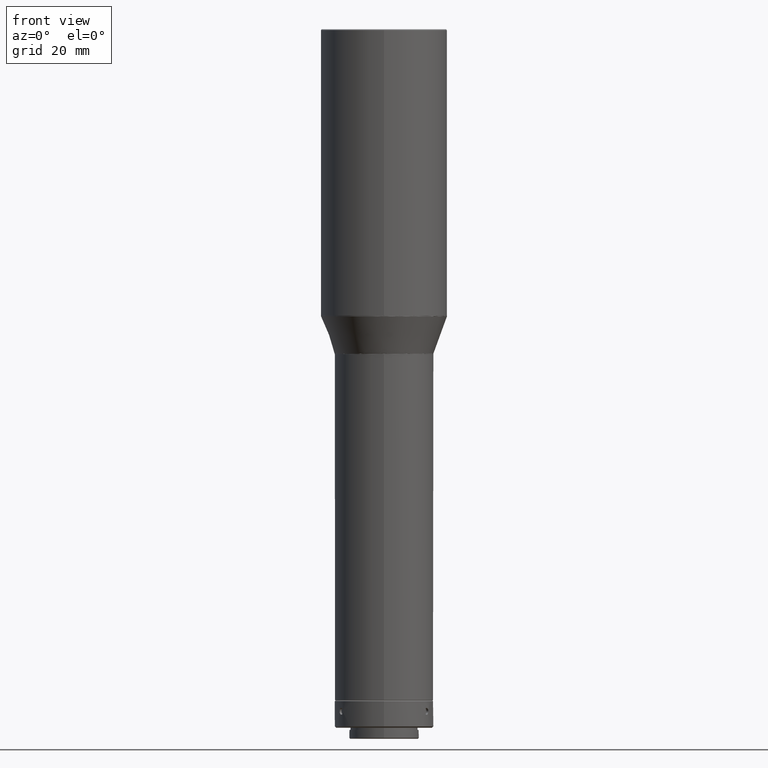
[diagram: clean part render]
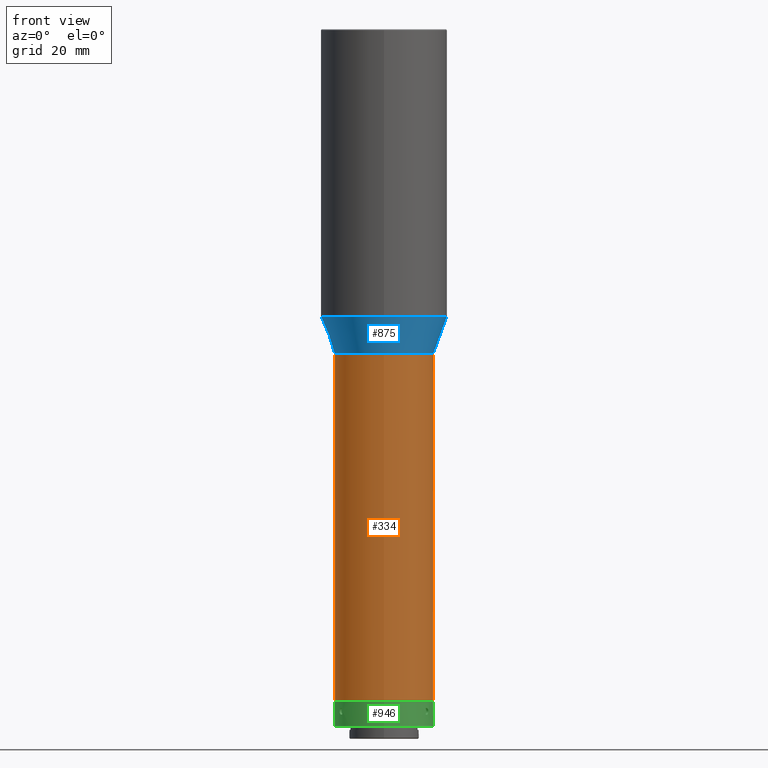
[diagram: same view with three faces highlighted in distinct colors, each labeled with its STEP entity id]
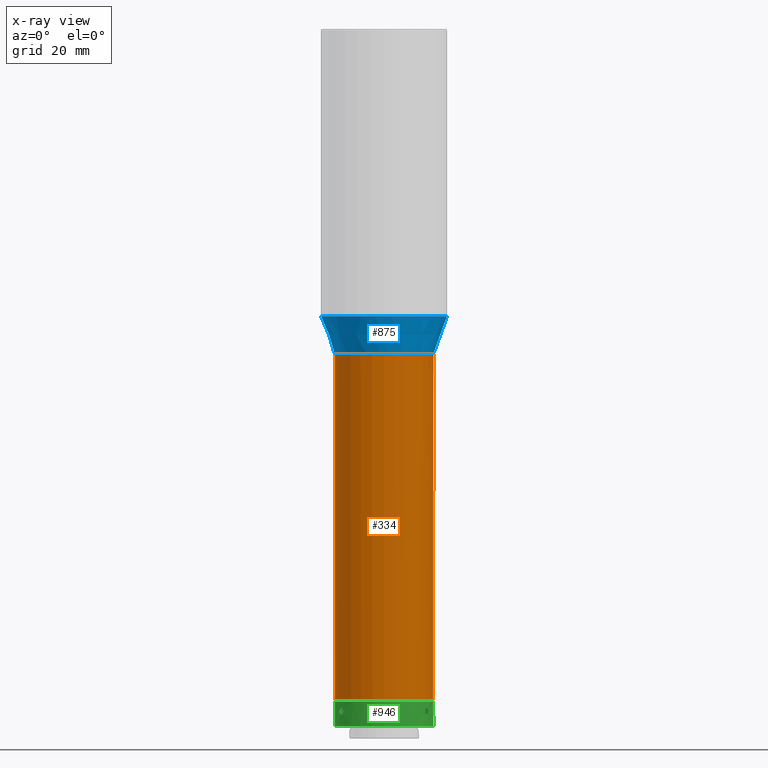
[diagram: x-ray of the same camera — body ghosted, the three highlighted faces saturated]
A machine part, front view with three faces highlighted in distinct colors.
The next image is the same camera in x-ray (body ghosted, the three faces saturated) — at least one of them is partly hidden behind the body in this view.
Their STEP definitions:

[orange] entity #334 — the highlighted cylindrical surface (bore or boss wall) has radius 18 mm, axis along (0, 0, 1).
#28 = DIRECTION ( 'NONE',  ( 7.703719777548943412E-32, 2.775557561562909840E-17, 1.000000000000000000 ) ) ;
#34 = CARTESIAN_POINT ( 'NONE',  ( 1.363162296991161438E-29, -1.267639217236709753E-15, -512.5814980779815642 ) ) ;
#36 = FACE_OUTER_BOUND ( 'NONE', #437, .T. ) ;
#46 = VERTEX_POINT ( 'NONE', #462 ) ;
#144 = CIRCLE ( 'NONE', #457, 17.99999999999999645 ) ;
#172 = DIRECTION ( 'NONE',  ( 0.000000000000000000, -1.000000000000000000, 0.000000000000000000 ) ) ;
#207 = AXIS2_PLACEMENT_3D ( 'NONE', #900, #493, #172 ) ;
#233 = CYLINDRICAL_SURFACE ( 'NONE', #414, 17.99999999999999645 ) ;
#292 = ORIENTED_EDGE ( 'NONE', *, *, #1121, .T. ) ;
#330 = CARTESIAN_POINT ( 'NONE',  ( 17.99999999999999645, -1.267639217236709753E-15, -512.5814980779815642 ) ) ;
#334 = ADVANCED_FACE ( 'NONE', ( #36, #870 ), #233, .T. ) ;
#414 = AXIS2_PLACEMENT_3D ( 'NONE', #633, #28, #1052 ) ;
#437 = EDGE_LOOP ( 'NONE', ( #1341 ) ) ;
#441 = DIRECTION ( 'NONE',  ( -7.703719777548943412E-32, -2.775557561562909840E-17, -1.000000000000000000 ) ) ;
#457 = AXIS2_PLACEMENT_3D ( 'NONE', #34, #441, #1280 ) ;
#462 = CARTESIAN_POINT ( 'NONE',  ( 3.908273988849363898E-30, -18.00000000000000000, -638.7977839999999787 ) ) ;
#493 = DIRECTION ( 'NONE',  ( 7.703719777548943412E-32, 2.775557561562909840E-17, 1.000000000000000000 ) ) ;
#628 = CIRCLE ( 'NONE', #207, 17.99999999999999645 ) ;
#633 = CARTESIAN_POINT ( 'NONE',  ( 1.652485272392767333E-29, -2.252433418699909083E-16, -475.0252286709889518 ) ) ;
#870 = FACE_OUTER_BOUND ( 'NONE', #909, .T. ) ;
#900 = CARTESIAN_POINT ( 'NONE',  ( 3.908273988849363898E-30, -4.770844885069156223E-15, -638.7977839999999787 ) ) ;
#909 = EDGE_LOOP ( 'NONE', ( #292 ) ) ;
#912 = VERTEX_POINT ( 'NONE', #330 ) ;
#1035 = EDGE_CURVE ( 'NONE', #46, #46, #628, .T. ) ;
#1052 = DIRECTION ( 'NONE',  ( 0.000000000000000000, -1.000000000000000000, 0.000000000000000000 ) ) ;
#1121 = EDGE_CURVE ( 'NONE', #912, #912, #144, .T. ) ;
#1280 = DIRECTION ( 'NONE',  ( 1.000000000000000000, 0.000000000000000000, 0.000000000000000000 ) ) ;
#1341 = ORIENTED_EDGE ( 'NONE', *, *, #1035, .T. ) ;

[blue] entity #875 — the highlighted conical surface has half-angle 20 deg.
#44 = FACE_BOUND ( 'NONE', #915, .T. ) ;
#96 = ORIENTED_EDGE ( 'NONE', *, *, #287, .T. ) ;
#158 = DIRECTION ( 'NONE',  ( 1.000000000000000000, 2.132776484860738091E-32, 0.000000000000000000 ) ) ;
#243 = FACE_OUTER_BOUND ( 'NONE', #620, .T. ) ;
#260 = DIRECTION ( 'NONE',  ( 7.703719777548943412E-32, 2.775557561562909840E-17, 1.000000000000000000 ) ) ;
#287 = EDGE_CURVE ( 'NONE', #1316, #1316, #299, .T. ) ;
#299 = CIRCLE ( 'NONE', #591, 18.06030737921410889 ) ;
#361 = DIRECTION ( 'NONE',  ( 7.703719777548943412E-32, 2.775557561562909840E-17, 1.000000000000000000 ) ) ;
#374 = VERTEX_POINT ( 'NONE', #1107 ) ;
#382 = CARTESIAN_POINT ( 'NONE',  ( 18.06030737921410889, -1.258146251286564321E-15, -512.2394779346559517 ) ) ;
#384 = AXIS2_PLACEMENT_3D ( 'NONE', #1181, #440, #1087 ) ;
#440 = DIRECTION ( 'NONE',  ( 0.000000000000000000, -0.000000000000000000, 1.000000000000000000 ) ) ;
#448 = CARTESIAN_POINT ( 'NONE',  ( 1.365797124333619609E-29, -1.258146251286564716E-15, -512.2394779346559517 ) ) ;
#477 = EDGE_CURVE ( 'NONE', #374, #374, #1138, .T. ) ;
#494 = CONICAL_SURFACE ( 'NONE', #384, 22.93969262078595150, 0.3490658503988665062 ) ;
#541 = AXIS2_PLACEMENT_3D ( 'NONE', #1088, #361, #780 ) ;
#591 = AXIS2_PLACEMENT_3D ( 'NONE', #448, #260, #158 ) ;
#620 = EDGE_LOOP ( 'NONE', ( #1332 ) ) ;
#780 = DIRECTION ( 'NONE',  ( -1.000000000000000000, 0.000000000000000000, 0.000000000000000000 ) ) ;
#875 = ADVANCED_FACE ( 'NONE', ( #44, #243 ), #494, .T. ) ;
#915 = EDGE_LOOP ( 'NONE', ( #96 ) ) ;
#1087 = DIRECTION ( 'NONE',  ( 1.000000000000000000, 0.000000000000000000, 0.000000000000000000 ) ) ;
#1088 = CARTESIAN_POINT ( 'NONE',  ( 1.469073197619009819E-29, -8.860549831550666063E-16, -498.8334771626172142 ) ) ;
#1107 = CARTESIAN_POINT ( 'NONE',  ( -22.93969262078591953, -8.860549831550666063E-16, -498.8334771626172142 ) ) ;
#1138 = CIRCLE ( 'NONE', #541, 22.93969262078591953 ) ;
#1181 = CARTESIAN_POINT ( 'NONE',  ( 0.000000000000000000, -8.860549831550607884E-16, -498.8334771626172142 ) ) ;
#1316 = VERTEX_POINT ( 'NONE', #382 ) ;
#1332 = ORIENTED_EDGE ( 'NONE', *, *, #477, .F. ) ;

[green] entity #946 — the highlighted cylindrical surface (bore or boss wall) has radius 18 mm, axis along (0, -0, 1).
#22 = CARTESIAN_POINT ( 'NONE',  ( 2.490672292747463815E-14, -17.99999999999996803, -648.3977839999998878 ) ) ;
#23 = CARTESIAN_POINT ( 'NONE',  ( -14.94412316329294654, -10.03379964370059696, -643.2250848894949513 ) ) ;
#26 = CARTESIAN_POINT ( 'NONE',  ( -0.1622122894999863674, 18.00000780388933208, -641.6476716239671987 ) ) ;
#30 = CARTESIAN_POINT ( 'NONE',  ( 2.490672292747463815E-14, 3.543491112570156433E-14, -638.8977840000000015 ) ) ;
#53 = CARTESIAN_POINT ( 'NONE',  ( 0.6291994582050761675, 17.98962860717573875, -641.8054881845228010 ) ) ;
#54 = CARTESIAN_POINT ( 'NONE',  ( 15.19139366244531253, -9.655838794076574416, -643.8988806175245827 ) ) ;
#61 = CARTESIAN_POINT ( 'NONE',  ( -16.17582393315547407, -7.895740629197067761, -643.0629832392655771 ) ) ;
#66 = CARTESIAN_POINT ( 'NONE',  ( 15.01397497146088966, -9.928973643487784884, -643.5282099346065934 ) ) ;
#71 = CARTESIAN_POINT ( 'NONE',  ( -15.42218430790375194, -9.283256999105425677, -644.1147993772534619 ) ) ;
#74 = CARTESIAN_POINT ( 'NONE',  ( 1.250000000000015987, 17.95654476785556852, -642.8977840000000015 ) ) ;
#75 = CARTESIAN_POINT ( 'NONE',  ( 15.01384693159026540, -9.929166768100127882, -642.2677776262729594 ) ) ;
#79 = CARTESIAN_POINT ( 'NONE',  ( -15.26487600238788644, -9.539716451242918893, -643.9900801720305026 ) ) ;
#90 = CARTESIAN_POINT ( 'NONE',  ( 16.10573125108191306, -8.037996199706887168, -642.2673594048875430 ) ) ;
#116 = VERTEX_POINT ( 'NONE', #1258 ) ;
#128 = VERTEX_POINT ( 'NONE', #22 ) ;
#129 = CARTESIAN_POINT ( 'NONE',  ( -14.92582376334303262, -10.06080439058543696, -642.7325872969528291 ) ) ;
#132 = CARTESIAN_POINT ( 'NONE',  ( -0.9991393837938582489, 17.97261919133776686, -643.6664161668028328 ) ) ;
#147 = AXIS2_PLACEMENT_3D ( 'NONE', #30, #432, #1270 ) ;
#152 = CARTESIAN_POINT ( 'NONE',  ( 14.92582393315544209, -10.06080413865832490, -643.0629832392655771 ) ) ;
#153 = CARTESIAN_POINT ( 'NONE',  ( 1.217464335294337507, 17.95889008224768091, -642.5704849706280584 ) ) ;
#157 = CARTESIAN_POINT ( 'NONE',  ( -15.67042028344146232, -8.858020202463171344, -641.6478969727667163 ) ) ;
#169 = CARTESIAN_POINT ( 'NONE',  ( 16.10583377797243898, -8.037790164337387466, -643.5277916652776184 ) ) ;
#175 = CARTESIAN_POINT ( 'NONE',  ( 16.16158696957454666, -7.925090474844752819, -643.2250848894949513 ) ) ;
#177 = B_SPLINE_CURVE_WITH_KNOTS ( 'NONE', 3,
 ( #857, #1277, #253, #1178, #447, #865, #652, #259, #157, #557, #977, #874, #1293, #1195, #358, #661, #129, #950, #23, #842, #332, #1103, #79, #71, #1217, #667, #794, #891, #776, #286, #1205, #991, #61, #1223 ),
 .UNSPECIFIED., .T., .F.,
 ( 4, 2, 2, 2, 2, 2, 2, 2, 2, 2, 2, 2, 2, 2, 2, 2, 4 ),
 ( 0.000000000000000000, 0.0004885519476059286669, 0.0009771038952118573338, 0.001465655842817786001, 0.001954207790423714668, 0.002442759738029643551, 0.002931311685635572001, 0.003419863633241500452, 0.003908415580847429335, 0.004396967528453358219, 0.004885519476059287103, 0.005374071423665215119, 0.005862623371271144003, 0.006351175318877072887, 0.006839727266483000903, 0.007328279214088929787, 0.007816831161694858671 ),
 .UNSPECIFIED. ) ;
#180 = CARTESIAN_POINT ( 'NONE',  ( 1.091755923036157760, 17.96697055881279681, -643.5282099346064797 ) ) ;
#181 = CARTESIAN_POINT ( 'NONE',  ( 15.06517464280622143, -9.851590384043079851, -642.1291528769148726 ) ) ;
#187 = VERTEX_POINT ( 'NONE', #972 ) ;
#188 = CARTESIAN_POINT ( 'NONE',  ( 16.17582379988438390, -7.895740902226628499, -643.0629852896939838 ) ) ;
#244 = CARTESIAN_POINT ( 'NONE',  ( 1.091987193791671862, 17.96695623533832276, -642.2677776262729594 ) ) ;
#252 = AXIS2_PLACEMENT_3D ( 'NONE', #450, #956, #360 ) ;
#253 = CARTESIAN_POINT ( 'NONE',  ( -16.16158720264610693, -7.925089998557169224, -642.5704849706281721 ) ) ;
#259 = CARTESIAN_POINT ( 'NONE',  ( -15.75062872817971638, -8.714374564439935966, -641.6807686990359798 ) ) ;
#265 = CARTESIAN_POINT ( 'NONE',  ( -1.249999696914052993, 17.95654478895415451, -643.0629852896943248 ) ) ;
#266 = CARTESIAN_POINT ( 'NONE',  ( 14.92582393315540301, -10.06080413865837286, -642.7325847607347669 ) ) ;
#268 = ORIENTED_EDGE ( 'NONE', *, *, #454, .T. ) ;
#272 = CARTESIAN_POINT ( 'NONE',  ( 1.250000000000015987, 17.95654476785557208, -643.0629832392653498 ) ) ;
#286 = CARTESIAN_POINT ( 'NONE',  ( -16.06471677035727907, -8.120254879791511726, -643.6657041707625240 ) ) ;
#289 = CARTESIAN_POINT ( 'NONE',  ( 16.16155327807075892, -7.925159788840796082, -642.5701607959091461 ) ) ;
#311 = ORIENTED_EDGE ( 'NONE', *, *, #1179, .T. ) ;
#332 = CARTESIAN_POINT ( 'NONE',  ( -15.06517510034522545, -9.851589683955872090, -643.6664161668021507 ) ) ;
#335 = CARTESIAN_POINT ( 'NONE',  ( 0.9991402188564911802, 17.97261914514094272, -642.1291528769146453 ) ) ;
#341 = CARTESIAN_POINT ( 'NONE',  ( -1.217386932848413705, 17.95889559784537681, -642.5701607959091461 ) ) ;
#358 = CARTESIAN_POINT ( 'NONE',  ( -15.01397453000993387, -9.928974310108285906, -642.2673594048875430 ) ) ;
#360 = DIRECTION ( 'NONE',  ( -1.000000000000000000, -3.423875456688420705E-31, 0.000000000000000000 ) ) ;
#362 = CARTESIAN_POINT ( 'NONE',  ( -1.091756721072152159, 17.96697050981532939, -642.2673594048877703 ) ) ;
#363 = CARTESIAN_POINT ( 'NONE',  ( 15.26509761156022371, -9.539377401184744087, -643.9904600156606875 ) ) ;
#368 = FACE_BOUND ( 'NONE', #624, .T. ) ;
#376 = CARTESIAN_POINT ( 'NONE',  ( 1.217386422865442741, 17.95889563292110580, -643.2254090172556289 ) ) ;
#377 = CARTESIAN_POINT ( 'NONE',  ( 15.89407479287074310, -8.449912178065801527, -643.9900801720305026 ) ) ;
#386 = CARTESIAN_POINT ( 'NONE',  ( -17.99999999999996803, 3.544149317719566040E-14, -639.1977839999999560 ) ) ;
#392 = CARTESIAN_POINT ( 'NONE',  ( 15.50648066428972705, -9.141971952207558871, -641.6478969727667163 ) ) ;
#432 = DIRECTION ( 'NONE',  ( 3.081487911019577365E-32, -2.194017164698387090E-17, 1.000000000000000000 ) ) ;
#433 = CARTESIAN_POINT ( 'NONE',  ( 1.250000000000015987, 17.95654476785556142, -642.7325847607345395 ) ) ;
#447 = CARTESIAN_POINT ( 'NONE',  ( -16.06431486166295386, -8.121028761097660364, -642.1291528769148726 ) ) ;
#450 = CARTESIAN_POINT ( 'NONE',  ( 2.490672292747463815E-14, 3.544149317719566671E-14, -639.1977839999999560 ) ) ;
#454 = EDGE_CURVE ( 'NONE', #805, #805, #1206, .T. ) ;
#479 = CARTESIAN_POINT ( 'NONE',  ( 15.42218411498790687, -9.283257321960542541, -641.6807686990359798 ) ) ;
#499 = CARTESIAN_POINT ( 'NONE',  ( 15.66957017123615792, -8.859523938431834722, -641.6476716239671987 ) ) ;
#535 = CARTESIAN_POINT ( 'NONE',  ( -0.1639394304985891671, 17.99999215467995484, -644.1476710273640265 ) ) ;
#545 = DIRECTION ( 'NONE',  ( 0.000000000000000000, -1.000000000000000000, 0.000000000000000000 ) ) ;
#552 = CARTESIAN_POINT ( 'NONE',  ( 0.1639396191514665979, 17.99999215467090963, -641.6478969727662616 ) ) ;
#557 = CARTESIAN_POINT ( 'NONE',  ( -15.50735788173644458, -9.140483865457325052, -641.6476716239671987 ) ) ;
#559 = CARTESIAN_POINT ( 'NONE',  ( 15.75062854503697274, -8.714374892937561512, -644.1147993772534619 ) ) ;
#569 = CARTESIAN_POINT ( 'NONE',  ( 16.06431448413920648, -8.121029507381704704, -643.6664161668021507 ) ) ;
#575 = CYLINDRICAL_SURFACE ( 'NONE', #147, 18.00000000000000355 ) ;
#577 = CARTESIAN_POINT ( 'NONE',  ( 15.89389229175801610, -8.450273022654997135, -641.8051083457094137 ) ) ;
#579 = B_SPLINE_CURVE_WITH_KNOTS ( 'NONE', 3,
 ( #755, #433, #153, #244, #335, #637, #53, #852, #552, #26, #763, #657, #1266, #877, #362, #341, #733, #265, #1049, #973, #132, #1165, #1273, #642, #535, #964, #860, #1090, #773, #1201, #180, #376, #272, #74 ),
 .UNSPECIFIED., .T., .F.,
 ( 4, 2, 2, 2, 2, 2, 2, 2, 2, 2, 2, 2, 2, 2, 2, 2, 4 ),
 ( 0.000000000000000000, 0.0004885519476059275827, 0.0009771038952118551654, 0.001465655842817782965, 0.001954207790423710765, 0.002442759738029638781, 0.002931311685635566364, 0.003419863633241493946, 0.003908415580847421529, 0.004396967528453349545, 0.004885519476059276694, 0.005374071423665204711, 0.005862623371271131860, 0.006351175318877059876, 0.006839727266482987025, 0.007328279214088915042, 0.007816831161694841323 ),
 .UNSPECIFIED. ) ;
#593 = CARTESIAN_POINT ( 'NONE',  ( 15.95885680708793863, -8.326356316898280596, -643.8969540424840261 ) ) ;
#624 = EDGE_LOOP ( 'NONE', ( #268 ) ) ;
#637 = CARTESIAN_POINT ( 'NONE',  ( 0.7685930773334179733, 17.98395353626944271, -641.8986145139833752 ) ) ;
#642 = CARTESIAN_POINT ( 'NONE',  ( -0.3284442371330478783, 17.99763189204316305, -644.1147993772535756 ) ) ;
#648 = FACE_OUTER_BOUND ( 'NONE', #1292, .T. ) ;
#652 = CARTESIAN_POINT ( 'NONE',  ( -15.89407510756408648, -8.449911588734520862, -641.8054881845229147 ) ) ;
#657 = CARTESIAN_POINT ( 'NONE',  ( -0.6287950393456818166, 17.98965100100362946, -641.8051083457096411 ) ) ;
#661 = CARTESIAN_POINT ( 'NONE',  ( -14.94416634522246845, -10.03373580900441020, -642.5701607959091461 ) ) ;
#667 = CARTESIAN_POINT ( 'NONE',  ( -15.66957007690067805, -8.859524101807499719, -644.1478963759025191 ) ) ;
#670 = FACE_OUTER_BOUND ( 'NONE', #793, .T. ) ;
#733 = CARTESIAN_POINT ( 'NONE',  ( -1.250000303081676423, 17.95654474675730228, -642.7325872969531702 ) ) ;
#748 = DIRECTION ( 'NONE',  ( 3.081487911019577365E-32, -2.194017164698387090E-17, 1.000000000000000000 ) ) ;
#755 = CARTESIAN_POINT ( 'NONE',  ( 1.250000000000015987, 17.95654476785556852, -642.8977840000000015 ) ) ;
#759 = ORIENTED_EDGE ( 'NONE', *, *, #1148, .T. ) ;
#763 = CARTESIAN_POINT ( 'NONE',  ( -0.3260726576621673090, 17.99768326650244177, -641.6799991631303328 ) ) ;
#764 = CARTESIAN_POINT ( 'NONE',  ( 15.06470539628275418, -9.852325387835451309, -643.6657041707625240 ) ) ;
#772 = FACE_BOUND ( 'NONE', #1010, .T. ) ;
#773 = CARTESIAN_POINT ( 'NONE',  ( 0.7665048592950863826, 17.98405222760587918, -643.8988806175246964 ) ) ;
#774 = CARTESIAN_POINT ( 'NONE',  ( 15.19026408422145558, -9.657597898278503123, -641.8986145139832615 ) ) ;
#776 = CARTESIAN_POINT ( 'NONE',  ( -15.95789852174029910, -8.328213433529130683, -643.8988806175245827 ) ) ;
#793 = EDGE_LOOP ( 'NONE', ( #1216 ) ) ;
#794 = CARTESIAN_POINT ( 'NONE',  ( -15.74948706598765291, -8.716454752419828367, -644.1155689096972310 ) ) ;
#805 = VERTEX_POINT ( 'NONE', #1310 ) ;
#837 = EDGE_CURVE ( 'NONE', #904, #904, #1251, .T. ) ;
#842 = CARTESIAN_POINT ( 'NONE',  ( -15.01384736159112876, -9.929166118684797482, -643.5277916652776184 ) ) ;
#852 = CARTESIAN_POINT ( 'NONE',  ( 0.3284446131915584322, 17.99763188640067213, -641.6807686990359798 ) ) ;
#857 = CARTESIAN_POINT ( 'NONE',  ( -16.17582393315548117, -7.895740629197040228, -642.8977840000002288 ) ) ;
#860 = CARTESIAN_POINT ( 'NONE',  ( 0.3260722864607006888, 17.99768327192974482, -644.1155689096971173 ) ) ;
#865 = CARTESIAN_POINT ( 'NONE',  ( -15.95885716155514444, -8.326355637990745961, -641.8986145139832615 ) ) ;
#874 = CARTESIAN_POINT ( 'NONE',  ( -15.26509725241258586, -9.539377978348468901, -641.8051083457094137 ) ) ;
#877 = CARTESIAN_POINT ( 'NONE',  ( -1.000012230497448806, 17.97258022027634183, -642.1298648980900907 ) ) ;
#882 = ORIENTED_EDGE ( 'NONE', *, *, #1015, .T. ) ;
#891 = CARTESIAN_POINT ( 'NONE',  ( -15.89389197149331245, -8.450273622267795659, -643.9904600156606875 ) ) ;
#895 = CARTESIAN_POINT ( 'NONE',  ( 14.92582393315542255, -10.06080413865834799, -642.8977840000002288 ) ) ;
#901 = AXIS2_PLACEMENT_3D ( 'NONE', #1191, #748, #545 ) ;
#904 = VERTEX_POINT ( 'NONE', #386 ) ;
#913 = CARTESIAN_POINT ( 'NONE',  ( 15.42341477952710527, -9.281228519509740593, -644.1155689096972310 ) ) ;
#946 = ADVANCED_FACE ( 'NONE', ( #648, #368, #772, #670, #1097 ), #575, .T. ) ;
#950 = CARTESIAN_POINT ( 'NONE',  ( -14.92582410297035089, -10.06080388672734571, -643.0629852896939838 ) ) ;
#956 = DIRECTION ( 'NONE',  ( 3.081487911019577365E-32, -2.194017164698387090E-17, 1.000000000000000000 ) ) ;
#964 = CARTESIAN_POINT ( 'NONE',  ( 0.1622121008445978896, 18.00000780388029753, -644.1478963759024055 ) ) ;
#972 = CARTESIAN_POINT ( 'NONE',  ( -16.17582393315548472, -7.895740629197043781, -642.8977840000002288 ) ) ;
#973 = CARTESIAN_POINT ( 'NONE',  ( -1.091986416381302227, 17.96695628302235903, -643.5277916652777321 ) ) ;
#977 = CARTESIAN_POINT ( 'NONE',  ( -15.42341458922625996, -9.281228838265802139, -641.6799991631305602 ) ) ;
#980 = CARTESIAN_POINT ( 'NONE',  ( 15.50735797605625343, -9.140483702072618399, -644.1478963759025191 ) ) ;
#989 = CARTESIAN_POINT ( 'NONE',  ( 14.92582393315542255, -10.06080413865834799, -642.8977840000002288 ) ) ;
#991 = CARTESIAN_POINT ( 'NONE',  ( -16.16155305345581894, -7.925160248036666744, -643.2254090172558563 ) ) ;
#993 = CARTESIAN_POINT ( 'NONE',  ( 14.94412286735165374, -10.03380008369032339, -642.5704849706281721 ) ) ;
#1007 = CARTESIAN_POINT ( 'NONE',  ( 15.67042018912280099, -8.858020365846051902, -644.1476710273641402 ) ) ;
#1010 = EDGE_LOOP ( 'NONE', ( #882 ) ) ;
#1015 = EDGE_CURVE ( 'NONE', #187, #187, #177, .T. ) ;
#1049 = CARTESIAN_POINT ( 'NONE',  ( -1.217463806281623206, 17.95889011854552919, -643.2250848894954061 ) ) ;
#1065 = CIRCLE ( 'NONE', #901, 18.00000000000000355 ) ;
#1090 = CARTESIAN_POINT ( 'NONE',  ( 0.6287943599332274092, 17.98965102345271561, -643.9904600156604602 ) ) ;
#1097 = FACE_BOUND ( 'NONE', #1229, .T. ) ;
#1103 = CARTESIAN_POINT ( 'NONE',  ( -15.19026449493894937, -9.657597251847093389, -643.8969540424840261 ) ) ;
#1114 = CARTESIAN_POINT ( 'NONE',  ( 15.95789887597216783, -8.328212755427065517, -641.8966879321258148 ) ) ;
#1122 = CARTESIAN_POINT ( 'NONE',  ( 16.06471715756165253, -8.120254114432386316, -642.1298648980897497 ) ) ;
#1148 = EDGE_CURVE ( 'NONE', #128, #128, #1065, .T. ) ;
#1165 = CARTESIAN_POINT ( 'NONE',  ( -0.7685923121488179577, 17.98395356874555162, -643.8969540424840261 ) ) ;
#1178 = CARTESIAN_POINT ( 'NONE',  ( -16.10583412538210268, -8.037789467238003027, -642.2677776262729594 ) ) ;
#1179 = EDGE_CURVE ( 'NONE', #116, #116, #579, .T. ) ;
#1191 = CARTESIAN_POINT ( 'NONE',  ( 2.490672292747463815E-14, 3.564334275634791260E-14, -648.3977839999998878 ) ) ;
#1195 = CARTESIAN_POINT ( 'NONE',  ( -15.06470492706441888, -9.852326105843797421, -642.1298648980897497 ) ) ;
#1201 = CARTESIAN_POINT ( 'NONE',  ( 1.000011374074595283, 17.97258026762713712, -643.6657041707624103 ) ) ;
#1202 = CARTESIAN_POINT ( 'NONE',  ( 14.94416663059035599, -10.03373538488426853, -643.2254090172558563 ) ) ;
#1205 = CARTESIAN_POINT ( 'NONE',  ( -16.10573089449703232, -8.037996915324832514, -643.5282099346065934 ) ) ;
#1206 = B_SPLINE_CURVE_WITH_KNOTS ( 'NONE', 3,
 ( #989, #266, #993, #75, #181, #774, #1220, #479, #392, #499, #1227, #577, #1114, #1122, #90, #289, #1307, #188, #175, #169, #569, #593, #377, #559, #1007, #980, #913, #363, #54, #764, #66, #1202, #152, #895 ),
 .UNSPECIFIED., .T., .F.,
 ( 4, 2, 2, 2, 2, 2, 2, 2, 2, 2, 2, 2, 2, 2, 2, 2, 4 ),
 ( 0.000000000000000000, 0.0004885519476059296427, 0.0009771038952118592854, 0.001465655842817788820, 0.001954207790423718571, 0.002442759738029648322, 0.002931311685635577639, 0.003419863633241507390, 0.003908415580847437142, 0.004396967528453366893, 0.004885519476059296644, 0.005374071423665226395, 0.005862623371271155279, 0.006351175318877085030, 0.006839727266483014781, 0.007328279214088944532, 0.007816831161694874283 ),
 .UNSPECIFIED. ) ;
#1216 = ORIENTED_EDGE ( 'NONE', *, *, #837, .F. ) ;
#1217 = CARTESIAN_POINT ( 'NONE',  ( -15.50648075862404518, -9.141971788833721746, -644.1476710273641402 ) ) ;
#1220 = CARTESIAN_POINT ( 'NONE',  ( 15.26487564935877828, -9.539717018441017160, -641.8054881845229147 ) ) ;
#1223 = CARTESIAN_POINT ( 'NONE',  ( -16.17582393315548117, -7.895740629197040228, -642.8977840000002288 ) ) ;
#1227 = CARTESIAN_POINT ( 'NONE',  ( 15.74948724688815105, -8.716454428236470875, -641.6799991631305602 ) ) ;
#1229 = EDGE_LOOP ( 'NONE', ( #311 ) ) ;
#1251 = CIRCLE ( 'NONE', #252, 17.99999999999999289 ) ;
#1258 = CARTESIAN_POINT ( 'NONE',  ( 1.250000000000015987, 17.95654476785557208, -642.8977840000000015 ) ) ;
#1266 = CARTESIAN_POINT ( 'NONE',  ( -0.7665056236648644106, 17.98405219532858723, -641.8966879321260421 ) ) ;
#1270 = DIRECTION ( 'NONE',  ( 0.000000000000000000, -1.000000000000000000, 0.000000000000000000 ) ) ;
#1273 = CARTESIAN_POINT ( 'NONE',  ( -0.6291987904827063272, 17.98962862930889273, -643.9900801720306163 ) ) ;
#1277 = CARTESIAN_POINT ( 'NONE',  ( -16.17582393315549183, -7.895740629197013583, -642.7325847607347669 ) ) ;
#1292 = EDGE_LOOP ( 'NONE', ( #759 ) ) ;
#1293 = CARTESIAN_POINT ( 'NONE',  ( -15.19139325230756121, -9.655839439901358290, -641.8966879321258148 ) ) ;
#1307 = CARTESIAN_POINT ( 'NONE',  ( 16.17582406642462090, -7.895740356171705443, -642.7325872969528291 ) ) ;
#1310 = CARTESIAN_POINT ( 'NONE',  ( 14.92582393315542255, -10.06080413865834622, -642.8977840000002288 ) ) ;